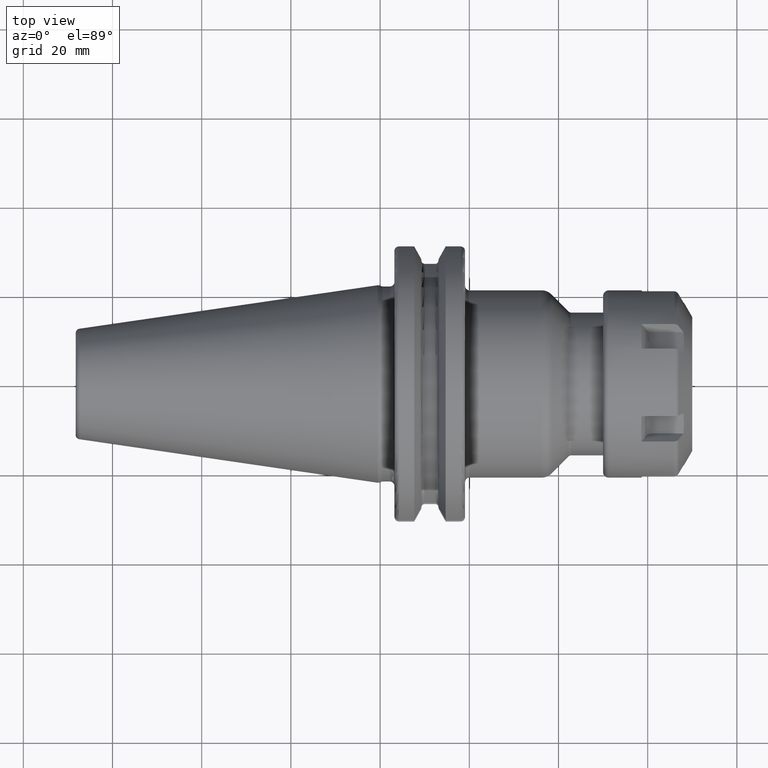
[diagram: clean part render]
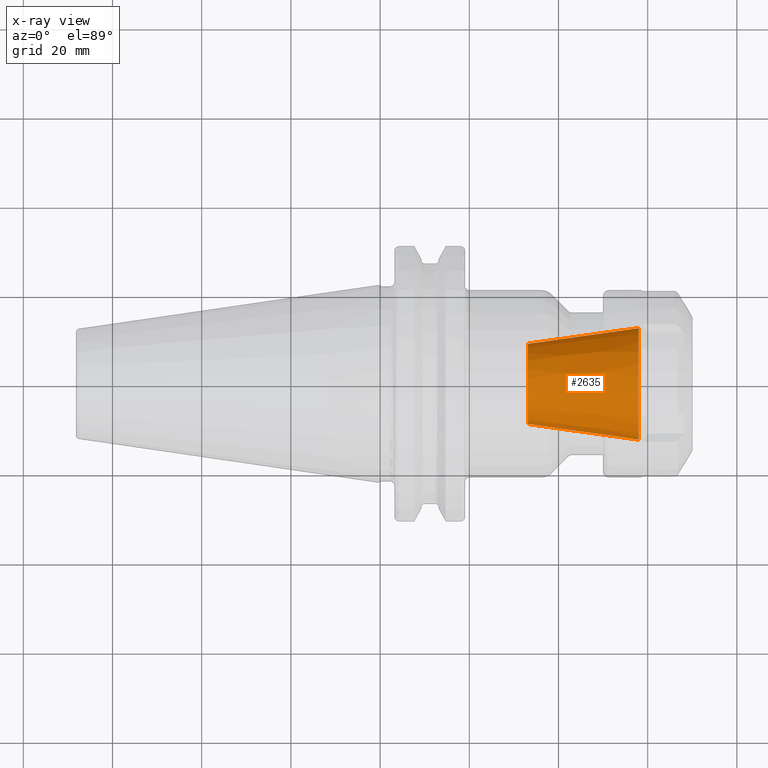
[diagram: x-ray — body ghosted, one internal face saturated and labeled with its STEP entity id]
A machine part, top view, then the same camera in x-ray: the body is ghosted and one INTERNAL B-rep face — a face not visible from any outside direction — is saturated and labeled: STEP entity #2635.
In plain terms, the highlighted conical surface has half-angle 8 deg.
Its self-contained STEP definition (entity closure, byte-faithful):
#1012=CARTESIAN_POINT('',(5.8E1,0.E0,0.E0));
#1013=DIRECTION('',(1.E0,0.E0,0.E0));
#1014=DIRECTION('',(0.E0,1.E0,0.E0));
#1015=AXIS2_PLACEMENT_3D('',#1012,#1013,#1014);
#1022=DIRECTION('',(-9.902680687416E-1,1.391731009601E-1,0.E0));
#1023=VECTOR('',#1022,2.514853787015E1);
#1024=CARTESIAN_POINT('',(5.8E1,-1.25E1,0.E0));
#1025=LINE('',#1024,#1023);
#1026=DIRECTION('',(-9.902680687416E-1,-1.391731009601E-1,0.E0));
#1027=VECTOR('',#1026,2.514853787015E1);
#1028=CARTESIAN_POINT('',(5.8E1,1.25E1,0.E0));
#1029=LINE('',#1028,#1027);
#1043=CARTESIAN_POINT('',(3.309620597166E1,0.E0,0.E0));
#1044=DIRECTION('',(1.E0,0.E0,0.E0));
#1045=DIRECTION('',(0.E0,1.E0,0.E0));
#1046=AXIS2_PLACEMENT_3D('',#1043,#1044,#1045);
#1520=CARTESIAN_POINT('',(3.309620597166E1,9.E0,0.E0));
#1522=VERTEX_POINT('',#1520);
#1524=CARTESIAN_POINT('',(3.309620597166E1,-9.E0,0.E0));
#1526=VERTEX_POINT('',#1524);
#1528=CARTESIAN_POINT('',(5.8E1,1.25E1,0.E0));
#1529=CARTESIAN_POINT('',(5.8E1,-1.25E1,0.E0));
#1530=VERTEX_POINT('',#1528);
#1531=VERTEX_POINT('',#1529);
#2621=CARTESIAN_POINT('',(4.554810298583E1,0.E0,0.E0));
#2622=DIRECTION('',(1.E0,0.E0,0.E0));
#2623=DIRECTION('',(0.E0,-1.E0,0.E0));
#2624=AXIS2_PLACEMENT_3D('',#2621,#2622,#2623);
#2625=CONICAL_SURFACE('',#2624,1.075E1,8.E0);
#2626=ORIENTED_EDGE('',*,*,#2614,.F.);
#2628=ORIENTED_EDGE('',*,*,#2627,.T.);
#2630=ORIENTED_EDGE('',*,*,#2629,.T.);
#2632=ORIENTED_EDGE('',*,*,#2631,.F.);
#2633=EDGE_LOOP('',(#2626,#2628,#2630,#2632));
#2634=FACE_OUTER_BOUND('',#2633,.F.);
#2635=ADVANCED_FACE('',(#2634),#2625,.F.);
#1016=CIRCLE('',#1015,1.25E1);
#1047=CIRCLE('',#1046,9.E0);
#2614=EDGE_CURVE('',#1530,#1531,#1016,.T.);
#2627=EDGE_CURVE('',#1530,#1522,#1029,.T.);
#2629=EDGE_CURVE('',#1522,#1526,#1047,.T.);
#2631=EDGE_CURVE('',#1531,#1526,#1025,.T.);